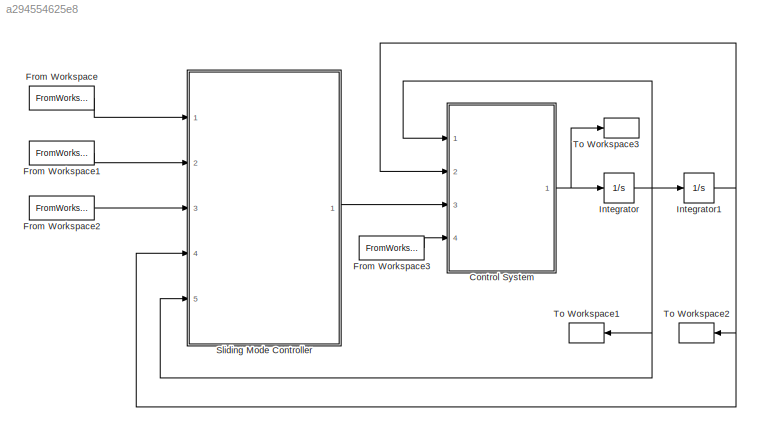
MODEL slx_a294554625e8
KIND model
CONFIG AbsTol = auto
CONFIG EnableMultiTasking = off
CONFIG FixedStep = dt
CONFIG MaxStep = auto
CONFIG MinStep = auto
CONFIG RelTol = 1e-3
CONFIG SampleTimeConstraint = Unconstrained
CONFIG Solver = ode4
CONFIG SolverName = ode4
CONFIG StartTime = 0.0
CONFIG StopTime = t(end)
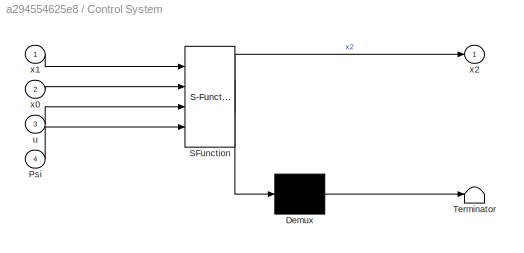
BLOCK [SubSystem] Control System
  ErrorFcn = Stateflow.Translate.translate
  PermitHierarchicalResolution = ExplicitOnly
  Ports = [4, 1]
  RequestExecContextInheritance = off
  SFBlockType = MATLAB Function
  TreatAsAtomicUnit = on
BLOCK [Demux] Control System/ Demux 
  Outputs = 1
  Ports = [1, 1]
BLOCK [S-Function] Control System/ SFunction 
  EnableBusSupport = on
  FunctionName = sf_sfun
  PortCounts = [4 2]
  Ports = [4, 2]
  SFcnIsStateOwnerBlock = off
  SFunctionDeploymentMode = off
  Tag = Stateflow S-Function NSMC 1
BLOCK [Terminator] Control System/ Terminator 
BLOCK [Inport] Control System/Psi
  IconDisplay = Port number
  Port = 4
BLOCK [Inport] Control System/u
  IconDisplay = Port number
  Port = 3
BLOCK [Inport] Control System/x0
  IconDisplay = Port number
  Port = 2
BLOCK [Inport] Control System/x1
  IconDisplay = Port number
BLOCK [Outport] Control System/x2
  IconDisplay = Port number
BLOCK [FromWorkspace] From Workspace
  SampleTime = dt
  VariableName = [t,x2d]
  ZeroCross = on
BLOCK [FromWorkspace] From Workspace1
  SampleTime = dt
  VariableName = [t,x1d]
  ZeroCross = on
BLOCK [FromWorkspace] From Workspace2
  SampleTime = dt
  VariableName = [t,x0d]
  ZeroCross = on
BLOCK [FromWorkspace] From Workspace3
  SampleTime = dt
  VariableName = [t,Psi]
  ZeroCross = on
BLOCK [Integrator] Integrator
  Ports = [1, 1]
BLOCK [Integrator] Integrator1
  Ports = [1, 1]
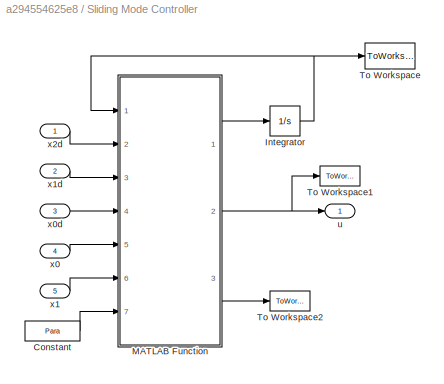
BLOCK [SubSystem] Sliding Mode Controller
  Ports = [5, 1]
  RequestExecContextInheritance = off
BLOCK [Constant] Sliding Mode Controller/Constant
  Value = Para
  VectorParams1D = off
BLOCK [Integrator] Sliding Mode Controller/Integrator
  Ports = [1, 1]
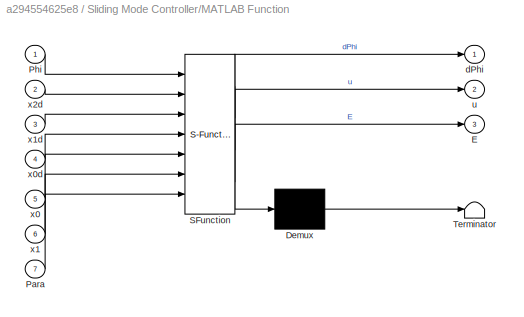
BLOCK [SubSystem] Sliding Mode Controller/MATLAB Function
  ErrorFcn = Stateflow.Translate.translate
  PermitHierarchicalResolution = ExplicitOnly
  Ports = [7, 3]
  RequestExecContextInheritance = off
  SFBlockType = MATLAB Function
  TreatAsAtomicUnit = on
BLOCK [Demux] Sliding Mode Controller/MATLAB Function/ Demux 
  Outputs = 1
  Ports = [1, 1]
BLOCK [S-Function] Sliding Mode Controller/MATLAB Function/ SFunction 
  EnableBusSupport = on
  FunctionName = sf_sfun
  PortCounts = [7 4]
  Ports = [7, 4]
  SFcnIsStateOwnerBlock = off
  SFunctionDeploymentMode = off
  Tag = Stateflow S-Function NSMC 2
BLOCK [Terminator] Sliding Mode Controller/MATLAB Function/ Terminator 
BLOCK [Outport] Sliding Mode Controller/MATLAB Function/E
  IconDisplay = Port number
  Port = 3
BLOCK [Inport] Sliding Mode Controller/MATLAB Function/Para
  IconDisplay = Port number
  Port = 7
BLOCK [Inport] Sliding Mode Controller/MATLAB Function/Phi
  IconDisplay = Port number
BLOCK [Outport] Sliding Mode Controller/MATLAB Function/dPhi
  IconDisplay = Port number
BLOCK [Outport] Sliding Mode Controller/MATLAB Function/u
  IconDisplay = Port number
  Port = 2
BLOCK [Inport] Sliding Mode Controller/MATLAB Function/x0
  IconDisplay = Port number
  Port = 5
BLOCK [Inport] Sliding Mode Controller/MATLAB Function/x0d
  IconDisplay = Port number
  Port = 4
BLOCK [Inport] Sliding Mode Controller/MATLAB Function/x1
  IconDisplay = Port number
  Port = 6
BLOCK [Inport] Sliding Mode Controller/MATLAB Function/x1d
  IconDisplay = Port number
  Port = 3
BLOCK [Inport] Sliding Mode Controller/MATLAB Function/x2d
  IconDisplay = Port number
  Port = 2
BLOCK [ToWorkspace] Sliding Mode Controller/To Workspace
  MaxDataPoints = inf
  Ports = [1]
  SampleTime = -1
  VariableName = Phi
BLOCK [ToWorkspace] Sliding Mode Controller/To Workspace1
  MaxDataPoints = inf
  Ports = [1]
  SampleTime = -1
  VariableName = u
BLOCK [ToWorkspace] Sliding Mode Controller/To Workspace2
  MaxDataPoints = inf
  Ports = [1]
  SampleTime = -1
  VariableName = E
BLOCK [Outport] Sliding Mode Controller/u
  IconDisplay = Port number
BLOCK [Inport] Sliding Mode Controller/x0
  IconDisplay = Port number
  Port = 4
BLOCK [Inport] Sliding Mode Controller/x0d
  IconDisplay = Port number
  Port = 3
BLOCK [Inport] Sliding Mode Controller/x1
  IconDisplay = Port number
  Port = 5
BLOCK [Inport] Sliding Mode Controller/x1d
  IconDisplay = Port number
  Port = 2
BLOCK [Inport] Sliding Mode Controller/x2d
  IconDisplay = Port number
BLOCK [ToWorkspace] To Workspace1
  MaxDataPoints = inf
  Ports = [1]
  SampleTime = -1
  VariableName = x1
BLOCK [ToWorkspace] To Workspace2
  MaxDataPoints = inf
  Ports = [1]
  SampleTime = -1
  VariableName = x0
BLOCK [ToWorkspace] To Workspace3
  MaxDataPoints = inf
  Ports = [1]
  SampleTime = -1
  VariableName = x2
NET Control System:1 -> Integrator:1, To Workspace3:1
LINE From Workspace1:1 -> Sliding Mode Controller:2
LINE From Workspace2:1 -> Sliding Mode Controller:3
LINE From Workspace3:1 -> Control System:4
LINE From Workspace:1 -> Sliding Mode Controller:1
NET Integrator1:1 -> Control System:2, Sliding Mode Controller:4, To Workspace2:1
NET Integrator:1 -> Control System:1, Integrator1:1, Sliding Mode Controller:5, To Workspace1:1
LINE Sliding Mode Controller/Constant:1 -> Sliding Mode Controller/MATLAB Function:7
NET Sliding Mode Controller/Integrator:1 -> Sliding Mode Controller/MATLAB Function:1, Sliding Mode Controller/To Workspace:1
LINE Sliding Mode Controller/MATLAB Function:1 -> Sliding Mode Controller/Integrator:1
NET Sliding Mode Controller/MATLAB Function:2 -> Sliding Mode Controller/To Workspace1:1, Sliding Mode Controller/u:1
LINE Sliding Mode Controller/MATLAB Function:3 -> Sliding Mode Controller/To Workspace2:1
LINE Sliding Mode Controller/x0:1 -> Sliding Mode Controller/MATLAB Function:5
LINE Sliding Mode Controller/x0d:1 -> Sliding Mode Controller/MATLAB Function:4
LINE Sliding Mode Controller/x1:1 -> Sliding Mode Controller/MATLAB Function:6
LINE Sliding Mode Controller/x1d:1 -> Sliding Mode Controller/MATLAB Function:3
LINE Sliding Mode Controller/x2d:1 -> Sliding Mode Controller/MATLAB Function:2
LINE Sliding Mode Controller:1 -> Control System:3
note: NET lines group one-source signal fan-out (src -> all destinations, sorted); 1:1 wires keep LINE
CHART Control System states=1 transitions=1
  STATE_LABEL 'eML_blk_kernel()'
  STATE_LABEL 'SCRIPT:\nfunction x2 = SYS(x1,x0,u,Psi)\nalpha=Psi(1);\nb=Psi(2);\nf=x1^2*cos(3*x0);\nx2=-alpha*f+b*u;'
CHART Sliding Mode Controller/MATLAB Function states=1 transitions=1
  STATE_LABEL 'eML_blk_kernel()'
  STATE_LABEL 'SCRIPT:\nfunction [dPhi,u,E] = SMC(Phi,x2d,x1d,x0d,x0,x1,Para)\nalpha_hat=Para(1);\nb_hat=Para(2);\na_bar=Para(3);\nb_bar=Para(4);\nlambda=Para(5);\nlambda1=Para(6);\neta=Para(7);\nsw=Para(8);\n\nf=x1^2*cos(3*x0);\ne0=x0-x0d; e1=x1-x1d;\nE=e1+lambda*e0;\nh=x2d-lambda*e1;\nbu_hat=alpha_hat*f+h;\nu_hat=bu_hat/b_hat;\n\nrho1=b_hat/(b_hat-sign(b_hat)*b_bar);\nk0=rho1*a_bar*abs(f)+(rho1-1)*abs(bu_hat);\n\nif sw~=0\n    rho2...<+276ch>'
